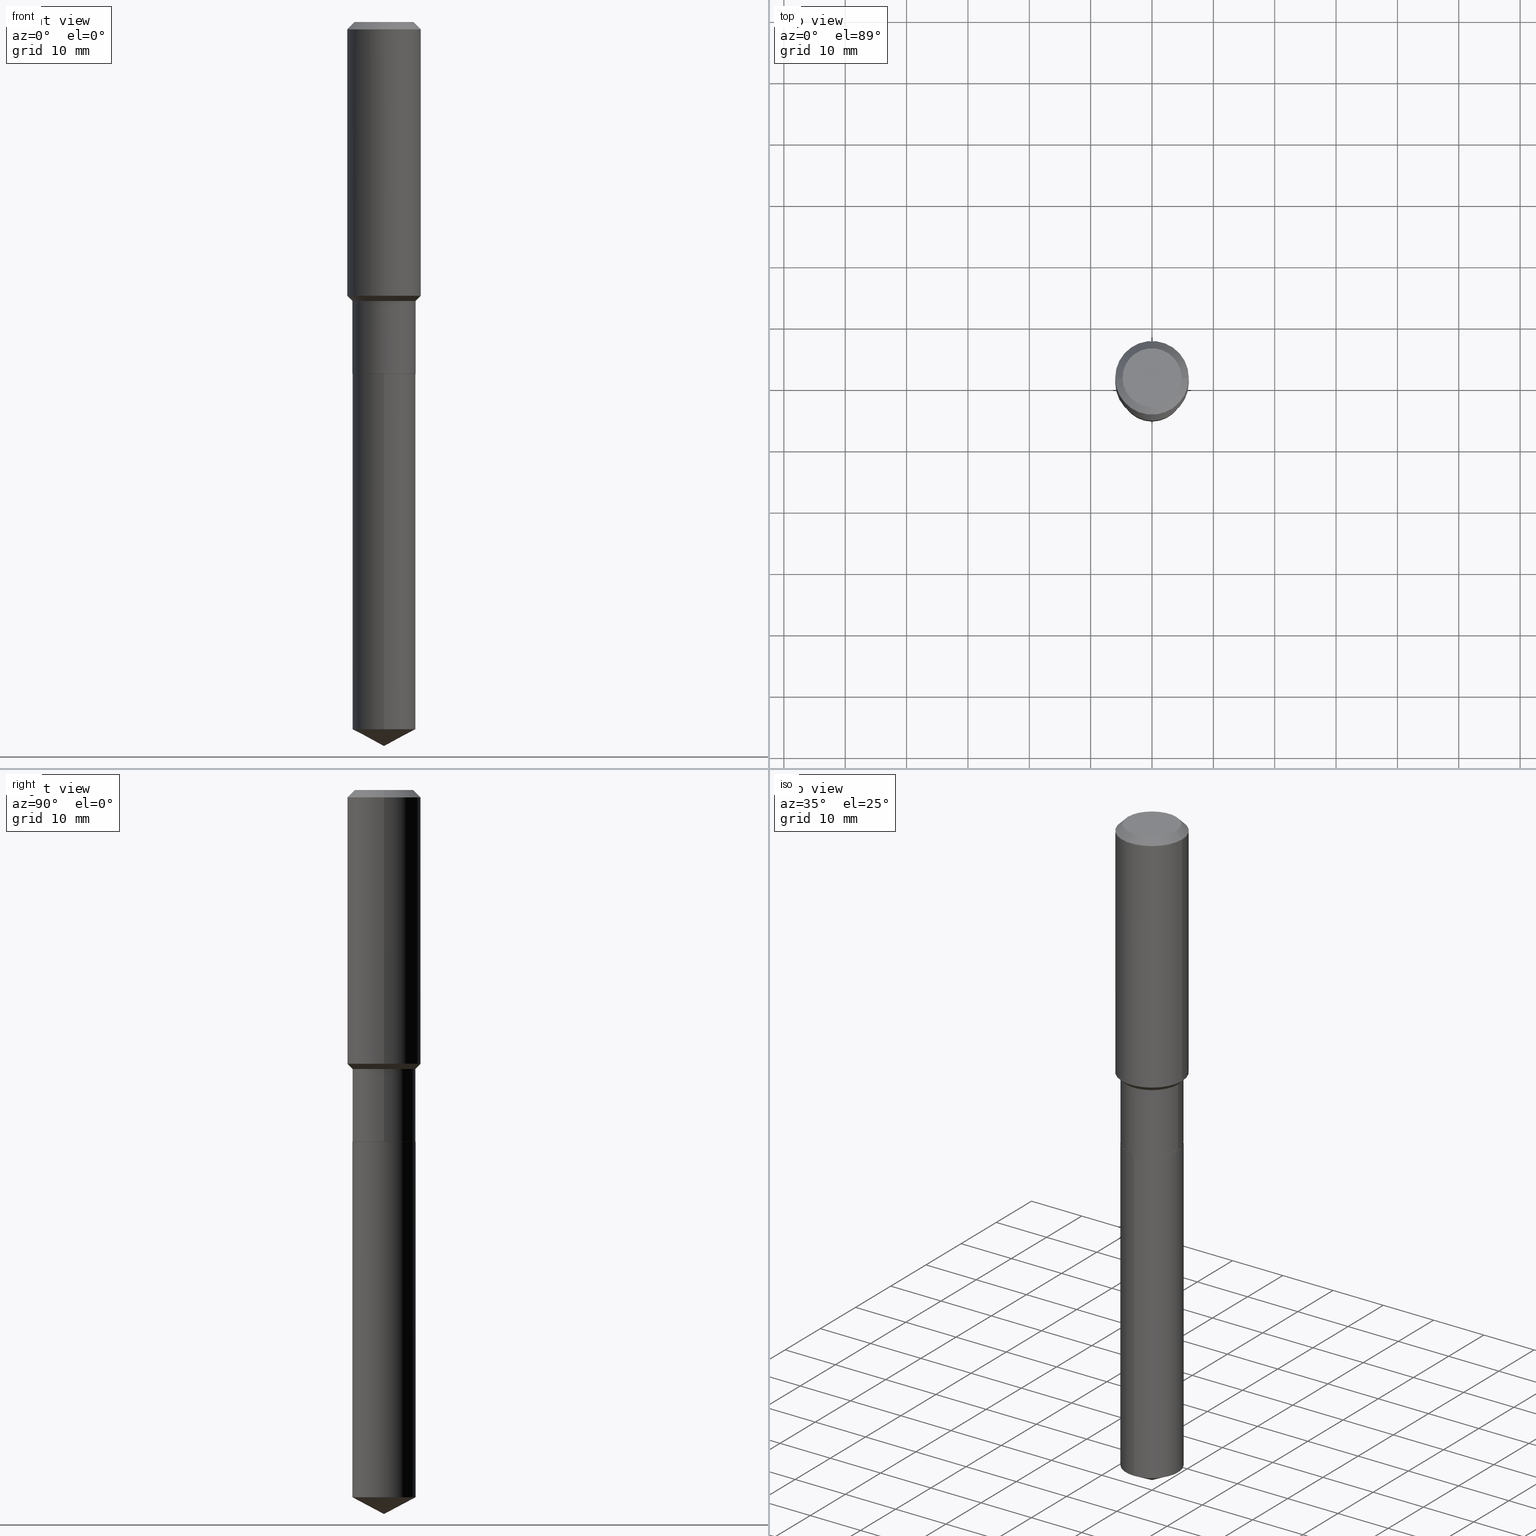
[diagram: canonical four-view strip — front | top / right | iso, engineering-drawing reading convention]
A machine part, canonical four-view strip (front | top / right | iso — engineering-drawing reading convention). The complete STEP part file that produces these views, byte-faithful:
ISO-10303-21;
HEADER;
FILE_DESCRIPTION (( 'STEP AP203' ),
    '1' );
FILE_NAME ('55183.STEP',
    '2024-04-24T16:58:36',
    ( '' ),
    ( '' ),
    'SwSTEP 2.0',
    'SolidWorks 2023',
    '' );
FILE_SCHEMA (( 'CONFIG_CONTROL_DESIGN' ));
ENDSEC;

DATA;
#1 = CARTESIAN_POINT ( 'NONE',  ( 1.155239464041864981E-30, -1.649375784469511119E-16, -0.04724000000000026789 ) ) ;
#2 = ADVANCED_FACE ( 'NONE', ( #255 ), #266, .T. ) ;
#3 = CARTESIAN_POINT ( 'NONE',  ( -9.427742298522546243E-47, 1.346031739168365344E-32, 3.855188123715862256E-18 ) ) ;
#4 = VECTOR ( 'NONE', #411, 39.37007874015748143 ) ;
#5 = ORIENTED_EDGE ( 'NONE', *, *, #20, .T. ) ;
#6 = CLOSED_SHELL ( 'NONE', ( #269, #330, #149, #410, #404, #446, #123, #457, #181, #454, #474, #2 ) ) ;
#7 = CARTESIAN_POINT ( 'NONE',  ( 0.2026000000000000023, -9.295719916535981924E-15, -2.257199999999999207 ) ) ;
#8 = ORIENTED_EDGE ( 'NONE', *, *, #220, .T. ) ;
#9 = EDGE_CURVE ( 'NONE', #385, #51, #188, .T. ) ;
#10 =( CONVERSION_BASED_UNIT ( 'INCH', #364 ) LENGTH_UNIT ( ) NAMED_UNIT ( #249 ) );
#11 = PERSON ( 'UNSPECIFIED', 'UNSPECIFIED', 'UNSPECIFIED', ('UNSPECIFIED'), ('UNSPECIFIED'), ('UNSPECIFIED') ) ;
#12 = VERTEX_POINT ( 'NONE', #103 ) ;
#13 = VECTOR ( 'NONE', #68, 39.37007874015747433 ) ;
#14 = AXIS2_PLACEMENT_3D ( 'NONE', #265, #450, #339 ) ;
#15 = PLANE ( 'NONE',  #110 ) ;
#16 = ORIENTED_EDGE ( 'NONE', *, *, #316, .T. ) ;
#17 = FACE_OUTER_BOUND ( 'NONE', #325, .T. ) ;
#18 = ORIENTED_EDGE ( 'NONE', *, *, #220, .F. ) ;
#19 = CARTESIAN_POINT ( 'NONE',  ( -0.2026000000000000023, -6.438762868212672328E-15, -2.257199999999999207 ) ) ;
#20 = EDGE_CURVE ( 'NONE', #460, #213, #365, .T. ) ;
#21 = COORDINATED_UNIVERSAL_TIME_OFFSET ( 5, 0, .BEHIND. ) ;
#22 =( LENGTH_UNIT ( ) NAMED_UNIT ( * ) SI_UNIT ( $, .METRE. ) );
#23 = ORIENTED_EDGE ( 'NONE', *, *, #116, .F. ) ;
#24 = VECTOR ( 'NONE', #61, 39.37007874015748143 ) ;
#25 = APPROVAL_ROLE ( '' ) ;
#26 = ORIENTED_EDGE ( 'NONE', *, *, #322, .F. ) ;
#27 = PERSON_AND_ORGANIZATION_ROLE ( 'creator' ) ;
#28 = ORIENTED_EDGE ( 'NONE', *, *, #358, .T. ) ;
#29 = PERSON_AND_ORGANIZATION_ROLE ( 'creator' ) ;
#30 = ORIENTED_EDGE ( 'NONE', *, *, #116, .T. ) ;
#31 = PERSON_AND_ORGANIZATION_ROLE ( 'design_supplier' ) ;
#32 = CIRCLE ( 'NONE', #99, 0.2361999999999999933 ) ;
#33 = DIRECTION ( 'NONE',  ( -6.982962677686266711E-15, -1.000000000000000000, 4.035225987687242674E-15 ) ) ;
#34 = CIRCLE ( 'NONE', #229, 0.2362000000000002431 ) ;
#35 = DIRECTION ( 'NONE',  ( 2.445468806185136597E-29, -3.491481338843145583E-15, -1.000000000000000000 ) ) ;
#36 = ADVANCED_FACE ( 'NONE', ( #152 ), #64, .T. ) ;
#37 = LINE ( 'NONE', #159, #478 ) ;
#38 = CARTESIAN_POINT ( 'NONE',  ( 0.2030999999999999750, -7.668340464501195554E-15, -1.790100000000000025 ) ) ;
#39 = AXIS2_PLACEMENT_3D ( 'NONE', #452, #120, #270 ) ;
#40 = VECTOR ( 'NONE', #309, 39.37007874015748143 ) ;
#41 = CC_DESIGN_PERSON_AND_ORGANIZATION_ASSIGNMENT ( #217, #27, ( #405 ) ) ;
#42 = CARTESIAN_POINT ( 'NONE',  ( 1.443112296328874924E-15, 0.2030999999999921479, -2.257200000000000539 ) ) ;
#43 = FACE_OUTER_BOUND ( 'NONE', #480, .T. ) ;
#44 = APPLICATION_CONTEXT ( 'configuration controlled 3d designs of mechanical parts and assemblies' ) ;
#45 = CARTESIAN_POINT ( 'NONE',  ( 4.377633709952013450E-29, -6.250100744663115568E-15, -1.790100000000000025 ) ) ;
#46 = AXIS2_PLACEMENT_3D ( 'NONE', #245, #354, #468 ) ;
#47 = ORIENTED_EDGE ( 'NONE', *, *, #59, .T. ) ;
#48 = CIRCLE ( 'NONE', #318, 0.1889600000000000168 ) ;
#49 = CARTESIAN_POINT ( 'NONE',  ( 4.377633709952013450E-29, -6.250100744663115568E-15, -1.790100000000000025 ) ) ;
#50 = PLANE ( 'NONE',  #473 ) ;
#51 = VERTEX_POINT ( 'NONE', #114 ) ;
#52 = APPROVAL_STATUS ( 'not_yet_approved' ) ;
#53 = ORIENTED_EDGE ( 'NONE', *, *, #9, .F. ) ;
#54 =( NAMED_UNIT ( * ) PLANE_ANGLE_UNIT ( ) SI_UNIT ( $, .RADIAN. ) );
#55 = EDGE_LOOP ( 'NONE', ( #98, #16, #244, #295 ) ) ;
#56 = AXIS2_PLACEMENT_3D ( 'NONE', #273, #304, #307 ) ;
#57 = AXIS2_PLACEMENT_3D ( 'NONE', #212, #169, #286 ) ;
#58 = DIRECTION ( 'NONE',  ( -2.438088387897960049E-29, 3.491481338843145188E-15, 1.000000000000000000 ) ) ;
#59 = EDGE_CURVE ( 'NONE', #12, #89, #290, .T. ) ;
#60 = VERTEX_POINT ( 'NONE', #455 ) ;
#61 = DIRECTION ( 'NONE',  ( -2.445468806185136877E-29, 3.491481338843145188E-15, 1.000000000000000000 ) ) ;
#62 = PERSON_AND_ORGANIZATION ( #11, #347 ) ;
#63 = CARTESIAN_POINT ( 'NONE',  ( 7.645244535497741815E-29, -4.837374791906948055E-15, -2.257199999999999651 ) ) ;
#64 = CYLINDRICAL_SURFACE ( 'NONE', #112, 0.2031000000000000028 ) ;
#65 = CARTESIAN_POINT ( 'NONE',  ( 0.000000000000000000, 0.000000000000000000, 0.000000000000000000 ) ) ;
#66 = APPLICATION_PROTOCOL_DEFINITION ( 'international standard', 'config_control_design', 1994, #71 ) ;
#67 = DIRECTION ( 'NONE',  ( -0.7071067811868130271, 7.493145998871311837E-15, 0.7071067811862817853 ) ) ;
#68 = DIRECTION ( 'NONE',  ( -6.165590087286837607E-15, -0.8829475928589267664, 0.4694715627858912499 ) ) ;
#69 = CIRCLE ( 'NONE', #451, 0.1889600000000000168 ) ;
#70 = VERTEX_POINT ( 'NONE', #85 ) ;
#71 = APPLICATION_CONTEXT ( 'configuration controlled 3d designs of mechanical parts and assemblies' ) ;
#72 = CC_DESIGN_PERSON_AND_ORGANIZATION_ASSIGNMENT ( #250, #141, ( #341 ) ) ;
#73 = ORIENTED_EDGE ( 'NONE', *, *, #79, .F. ) ;
#74 = DIRECTION ( 'NONE',  ( 1.000000000000000000, -6.982962677686266711E-15, 4.876176775795936353E-29 ) ) ;
#75 = CIRCLE ( 'NONE', #346, 0.2031000000000000028 ) ;
#76 = CC_DESIGN_APPROVAL ( #274, ( #285 ) ) ;
#77 = CARTESIAN_POINT ( 'NONE',  ( -8.491139215901974588E-28, 1.212460044372425280E-13, 34.72407874015748064 ) ) ;
#78 = CARTESIAN_POINT ( 'NONE',  ( 5.519912189321089648E-29, -7.880971678036746522E-15, -2.257199999999999651 ) ) ;
#79 = EDGE_CURVE ( 'NONE', #240, #51, #484, .T. ) ;
#80 = CONICAL_SURFACE ( 'NONE', #348, 0.2361999999999999933, 0.7853981633974453924 ) ;
#81 = APPROVAL_DATE_TIME ( #338, #274 ) ;
#82 = FACE_OUTER_BOUND ( 'NONE', #263, .T. ) ;
#83 = FACE_OUTER_BOUND ( 'NONE', #288, .T. ) ;
#84 = CC_DESIGN_PERSON_AND_ORGANIZATION_ASSIGNMENT ( #407, #31, ( #405 ) ) ;
#85 = CARTESIAN_POINT ( 'NONE',  ( 0.2361999999999999933, -1.814313362916447440E-15, -0.04724000000000026789 ) ) ;
#86 = FACE_OUTER_BOUND ( 'NONE', #97, .T. ) ;
#87 = DIRECTION ( 'NONE',  ( -2.445468806185136597E-29, 3.491481338843145583E-15, 1.000000000000000000 ) ) ;
#88 = DIRECTION ( 'NONE',  ( -2.445326593051058673E-29, 3.491684996145414062E-15, 1.000000000000000000 ) ) ;
#89 = VERTEX_POINT ( 'NONE', #306 ) ;
#90 = DIRECTION ( 'NONE',  ( 1.000000000000000000, -6.982962677686261189E-15, 0.000000000000000000 ) ) ;
#91 = LOCAL_TIME ( 12, 58, 36.00000000000000000, #409 ) ;
#92 = ORIENTED_EDGE ( 'NONE', *, *, #358, .F. ) ;
#93 = EDGE_CURVE ( 'NONE', #300, #385, #313, .T. ) ;
#94 = UNCERTAINTY_MEASURE_WITH_UNIT (LENGTH_MEASURE( 1.000000000000000082E-05 ), #10, 'distance_accuracy_value', 'NONE');
#95 = ORIENTED_EDGE ( 'NONE', *, *, #211, .F. ) ;
#96 = CARTESIAN_POINT ( 'NONE',  ( 1.136098735131521847E-28, -1.622236849209159255E-14, -4.645999999999999908 ) ) ;
#97 = EDGE_LOOP ( 'NONE', ( #292, #246, #23, #95 ) ) ;
#98 = ORIENTED_EDGE ( 'NONE', *, *, #351, .T. ) ;
#99 = AXIS2_PLACEMENT_3D ( 'NONE', #122, #121, #449 ) ;
#100 = VECTOR ( 'NONE', #393, 39.37007874015748143 ) ;
#101 = AXIS2_PLACEMENT_3D ( 'NONE', #340, #377, #336 ) ;
#102 = CYLINDRICAL_SURFACE ( 'NONE', #57, 0.2362000000000001321 ) ;
#103 = CARTESIAN_POINT ( 'NONE',  ( -0.2362000000000002431, -4.456230770482048538E-15, -1.756999999999999895 ) ) ;
#104 = CARTESIAN_POINT ( 'NONE',  ( 1.136098735131522071E-28, -1.622236849209159255E-14, -4.645999999999999908 ) ) ;
#105 = APPROVAL_DATE_TIME ( #475, #443 ) ;
#106 = ORIENTED_EDGE ( 'NONE', *, *, #237, .T. ) ;
#107 = APPROVAL_DATE_TIME ( #182, #225 ) ;
#108 = ORIENTED_EDGE ( 'NONE', *, *, #247, .F. ) ;
#109 = CC_DESIGN_PERSON_AND_ORGANIZATION_ASSIGNMENT ( #62, #29, ( #285 ) ) ;
#110 = AXIS2_PLACEMENT_3D ( 'NONE', #63, #58, #477 ) ;
#111 = COORDINATED_UNIVERSAL_TIME_OFFSET ( 5, 0, .BEHIND. ) ;
#112 = AXIS2_PLACEMENT_3D ( 'NONE', #296, #333, #483 ) ;
#113 = CARTESIAN_POINT ( 'NONE',  ( 4.296688692467284902E-29, -6.134532712347405721E-15, -1.756999999999999895 ) ) ;
#114 = CARTESIAN_POINT ( 'NONE',  ( -0.2031000000000000028, -5.621551044686456796E-15, -2.256699999999999928 ) ) ;
#115 = CALENDAR_DATE ( 2024, 24, 4 ) ;
#116 = EDGE_CURVE ( 'NONE', #70, #248, #32, .T. ) ;
#117 = CARTESIAN_POINT ( 'NONE',  ( 1.443112296328874135E-15, 0.2030999999999841821, -4.538009814429555533 ) ) ;
#118 = APPROVAL_PERSON_ORGANIZATION ( #390, #274, #183 ) ;
#119 = DIRECTION ( 'NONE',  ( -2.445468806185136597E-29, 3.491481338843145583E-15, 1.000000000000000000 ) ) ;
#120 = DIRECTION ( 'NONE',  ( -2.445468806185136597E-29, 3.491481338843145583E-15, 1.000000000000000000 ) ) ;
#121 = DIRECTION ( 'NONE',  ( -2.445468806185136597E-29, 3.491481338843145583E-15, 1.000000000000000000 ) ) ;
#122 = CARTESIAN_POINT ( 'NONE',  ( 1.155239464041864981E-30, -1.649375784469511119E-16, -0.04724000000000026789 ) ) ;
#123 = ADVANCED_FACE ( 'NONE', ( #236 ), #465, .T. ) ;
#124 = VECTOR ( 'NONE', #367, 39.37007874015748854 ) ;
#125 = CARTESIAN_POINT ( 'NONE',  ( 1.109723708223753094E-28, -1.584484108614163035E-14, -4.538009814429554645 ) ) ;
#126 = AXIS2_PLACEMENT_3D ( 'NONE', #148, #258, #232 ) ;
#127 = DIRECTION ( 'NONE',  ( -2.445468806185136597E-29, 3.491481338843145583E-15, 1.000000000000000000 ) ) ;
#128 = VERTEX_POINT ( 'NONE', #42 ) ;
#129 = EDGE_CURVE ( 'NONE', #429, #89, #343, .T. ) ;
#130 = CARTESIAN_POINT ( 'NONE',  ( 0.1889600000000000168, -1.540873453589747738E-15, 3.855188123725863225E-18 ) ) ;
#131 = DIRECTION ( 'NONE',  ( -2.445326593051058673E-29, 3.491684996145414062E-15, 1.000000000000000000 ) ) ;
#132 = EDGE_LOOP ( 'NONE', ( #53, #327, #425, #216 ) ) ;
#133 = APPLICATION_PROTOCOL_DEFINITION ( 'international standard', 'config_control_design', 1994, #44 ) ;
#134 = CONICAL_SURFACE ( 'NONE', #275, 0.2030999999999999750, 0.7853981633974482790 ) ;
#135 = ORIENTED_EDGE ( 'NONE', *, *, #303, .F. ) ;
#136 = FACE_OUTER_BOUND ( 'NONE', #469, .T. ) ;
#137 = EDGE_CURVE ( 'NONE', #51, #60, #37, .T. ) ;
#138 = CARTESIAN_POINT ( 'NONE',  ( -9.427742298522546243E-47, 1.346031739168365344E-32, 3.855188123715862256E-18 ) ) ;
#139 = ORIENTED_EDGE ( 'NONE', *, *, #303, .T. ) ;
#140 = FACE_OUTER_BOUND ( 'NONE', #172, .T. ) ;
#141 = PERSON_AND_ORGANIZATION_ROLE ( 'design_owner' ) ;
#142 = ORIENTED_EDGE ( 'NONE', *, *, #189, .T. ) ;
#143 = AXIS2_PLACEMENT_3D ( 'NONE', #243, #131, #387 ) ;
#144 = LOCAL_TIME ( 12, 58, 36.00000000000000000, #370 ) ;
#145 = AXIS2_PLACEMENT_3D ( 'NONE', #486, #195, #490 ) ;
#146 = SHAPE_DEFINITION_REPRESENTATION ( #272, #392 ) ;
#147 = ORIENTED_EDGE ( 'NONE', *, *, #200, .T. ) ;
#148 = CARTESIAN_POINT ( 'NONE',  ( 5.518689454917996847E-29, -7.879225937367325807E-15, -2.256699999999999928 ) ) ;
#149 = ADVANCED_FACE ( 'NONE', ( #86 ), #235, .T. ) ;
#150 = EDGE_LOOP ( 'NONE', ( #432, #317, #253, #204 ) ) ;
#151 = PERSON_AND_ORGANIZATION_ROLE ( 'classification_officer' ) ;
#152 = FACE_OUTER_BOUND ( 'NONE', #150, .T. ) ;
#153 = VECTOR ( 'NONE', #423, 39.37007874015748854 ) ;
#154 = ORIENTED_EDGE ( 'NONE', *, *, #161, .T. ) ;
#155 = EDGE_CURVE ( 'NONE', #371, #472, #417, .T. ) ;
#156 = DIRECTION ( 'NONE',  ( 1.000000000000000000, -6.982962677686261189E-15, 0.000000000000000000 ) ) ;
#157 = DIRECTION ( 'NONE',  ( 0.7071067811865474617, -2.468850131082256666E-15, 0.7071067811865474617 ) ) ;
#158 = APPROVAL_PERSON_ORGANIZATION ( #363, #443, #326 ) ;
#159 = CARTESIAN_POINT ( 'NONE',  ( -0.2031000000000000028, 1.443112296328763497E-15, -9.990357168307714203E-30 ) ) ;
#160 = LINE ( 'NONE', #302, #40 ) ;
#161 = EDGE_CURVE ( 'NONE', #408, #70, #231, .T. ) ;
#162 = DIRECTION ( 'NONE',  ( -2.445468806185136597E-29, 3.491481338843145583E-15, 1.000000000000000000 ) ) ;
#163 = CARTESIAN_POINT ( 'NONE',  ( 5.519912189321088527E-29, -7.880971678036746522E-15, -2.257199999999999207 ) ) ;
#164 = ORIENTED_EDGE ( 'NONE', *, *, #200, .F. ) ;
#165 = VECTOR ( 'NONE', #198, 39.37007874015748143 ) ;
#166 = ADVANCED_FACE ( 'NONE', ( #233 ), #395, .T. ) ;
#167 = CARTESIAN_POINT ( 'NONE',  ( 4.296688692467284902E-29, -6.134532712347405721E-15, -1.756999999999999895 ) ) ;
#168 = ORIENTED_EDGE ( 'NONE', *, *, #391, .F. ) ;
#169 = DIRECTION ( 'NONE',  ( -2.445468806185136597E-29, 3.491481338843145583E-15, 1.000000000000000000 ) ) ;
#170 = CC_DESIGN_DATE_AND_TIME_ASSIGNMENT ( #372, #332, ( #285 ) ) ;
#171 = CC_DESIGN_APPROVAL ( #225, ( #405 ) ) ;
#172 = EDGE_LOOP ( 'NONE', ( #8, #106 ) ) ;
#173 = AXIS2_PLACEMENT_3D ( 'NONE', #487, #162, #378 ) ;
#174 = ORIENTED_EDGE ( 'NONE', *, *, #93, .T. ) ;
#175 = DIRECTION ( 'NONE',  ( -1.000000000000000000, 6.982962677686266711E-15, 0.000000000000000000 ) ) ;
#176 = DIRECTION ( 'NONE',  ( -1.000000000000000000, 6.982962677686265922E-15, -4.876176775795935793E-29 ) ) ;
#177 = ORIENTED_EDGE ( 'NONE', *, *, #137, .T. ) ;
#178 = APPROVAL_STATUS ( 'not_yet_approved' ) ;
#179 = CARTESIAN_POINT ( 'NONE',  ( 0.2030999999999999750, -7.668340464501195554E-15, -1.790100000000000025 ) ) ;
#180 = DIRECTION ( 'NONE',  ( 1.000000000000000000, -6.982962677686261189E-15, 0.000000000000000000 ) ) ;
#181 = ADVANCED_FACE ( 'NONE', ( #271 ), #80, .T. ) ;
#182 = DATE_AND_TIME ( #187, #144 ) ;
#183 = APPROVAL_ROLE ( '' ) ;
#184 = ORIENTED_EDGE ( 'NONE', *, *, #211, .T. ) ;
#185 = DATE_TIME_ROLE ( 'classification_date' ) ;
#186 = ORIENTED_EDGE ( 'NONE', *, *, #488, .F. ) ;
#187 = CALENDAR_DATE ( 2024, 24, 4 ) ;
#188 = LINE ( 'NONE', #441, #311 ) ;
#189 = EDGE_CURVE ( 'NONE', #60, #429, #228, .T. ) ;
#190 = AXIS2_PLACEMENT_3D ( 'NONE', #419, #119, #74 ) ;
#191 = CONICAL_SURFACE ( 'NONE', #312, 74.04434902938369589, 1.082104136236487379 ) ;
#192 = PERSON_AND_ORGANIZATION ( #11, #347 ) ;
#193 = CYLINDRICAL_SURFACE ( 'NONE', #101, 0.2031000000000000028 ) ;
#194 = CARTESIAN_POINT ( 'NONE',  ( 0.2361999999999999933, -1.785387205520586782E-15, -0.04724000000000026789 ) ) ;
#195 = DIRECTION ( 'NONE',  ( -2.445468806185136597E-29, 3.491481338843145583E-15, 1.000000000000000000 ) ) ;
#196 = EDGE_CURVE ( 'NONE', #248, #70, #433, .T. ) ;
#197 = DIRECTION ( 'NONE',  ( -1.000000000000000000, 6.982962677686266711E-15, 0.000000000000000000 ) ) ;
#198 = DIRECTION ( 'NONE',  ( -2.445326593051058953E-29, 3.491684996145414062E-15, 1.000000000000000000 ) ) ;
#199 = CARTESIAN_POINT ( 'NONE',  ( 7.640012304217149312E-29, -4.844867644900865236E-15, -2.257199999999999651 ) ) ;
#200 = EDGE_CURVE ( 'NONE', #355, #248, #160, .T. ) ;
#201 = AXIS2_PLACEMENT_3D ( 'NONE', #163, #87, #90 ) ;
#202 = DIRECTION ( 'NONE',  ( -0.7071067811865474617, 7.493145998870352582E-15, 0.7071067811865474617 ) ) ;
#203 = SECURITY_CLASSIFICATION ( '', '', #299 ) ;
#204 = ORIENTED_EDGE ( 'NONE', *, *, #237, .F. ) ;
#205 = CLOSED_SHELL ( 'NONE', ( #234, #166, #374, #36, #308 ) ) ;
#206 = DIRECTION ( 'NONE',  ( -2.445468806185136597E-29, 3.491481338843145583E-15, 1.000000000000000000 ) ) ;
#207 = LINE ( 'NONE', #349, #320 ) ;
#208 = EDGE_LOOP ( 'NONE', ( #284, #142, #279, #329 ) ) ;
#209 = DIRECTION ( 'NONE',  ( 1.000000000000000000, -6.982962677686266711E-15, 4.876185090822587894E-29 ) ) ;
#210 = ORIENTED_EDGE ( 'NONE', *, *, #20, .F. ) ;
#211 = EDGE_CURVE ( 'NONE', #89, #70, #416, .T. ) ;
#212 = CARTESIAN_POINT ( 'NONE',  ( 0.000000000000000000, 0.000000000000000000, 0.000000000000000000 ) ) ;
#213 = VERTEX_POINT ( 'NONE', #117 ) ;
#214 = VECTOR ( 'NONE', #456, 39.37007874015748143 ) ;
#215 = CARTESIAN_POINT ( 'NONE',  ( 1.443112296328818323E-15, 0.2030999999999921202, -2.257200000000000539 ) ) ;
#216 = ORIENTED_EDGE ( 'NONE', *, *, #368, .F. ) ;
#217 = PERSON_AND_ORGANIZATION ( #11, #347 ) ;
#218 = DIRECTION ( 'NONE',  ( 1.000000000000000000, -6.982962677686265922E-15, 0.000000000000000000 ) ) ;
#219 = DIRECTION ( 'NONE',  ( -2.445468806185136597E-29, 3.491481338843145583E-15, 1.000000000000000000 ) ) ;
#220 = EDGE_CURVE ( 'NONE', #472, #128, #75, .T. ) ;
#221 = APPROVAL_STATUS ( 'not_yet_approved' ) ;
#222 = MECHANICAL_CONTEXT ( 'NONE', #71, 'mechanical' ) ;
#223 = ORIENTED_EDGE ( 'NONE', *, *, #467, .T. ) ;
#224 = ORIENTED_EDGE ( 'NONE', *, *, #391, .T. ) ;
#225 = APPROVAL ( #221, 'UNSPECIFIED' ) ;
#226 = ORIENTED_EDGE ( 'NONE', *, *, #337, .T. ) ;
#227 = DIRECTION ( 'NONE',  ( -2.445326593051058673E-29, 3.491684996145414062E-15, 1.000000000000000000 ) ) ;
#228 = CIRCLE ( 'NONE', #458, 0.2030999999999999750 ) ;
#229 = AXIS2_PLACEMENT_3D ( 'NONE', #167, #461, #470 ) ;
#230 = DIRECTION ( 'NONE',  ( -2.445326593051058673E-29, 3.491684996145414062E-15, 1.000000000000000000 ) ) ;
#231 = LINE ( 'NONE', #194, #214 ) ;
#232 = DIRECTION ( 'NONE',  ( 1.000000000000000000, -6.982962677686269866E-15, 0.000000000000000000 ) ) ;
#233 = FACE_OUTER_BOUND ( 'NONE', #294, .T. ) ;
#234 = ADVANCED_FACE ( 'NONE', ( #83 ), #193, .T. ) ;
#235 = CYLINDRICAL_SURFACE ( 'NONE', #190, 0.2362000000000001321 ) ;
#236 = FACE_OUTER_BOUND ( 'NONE', #208, .T. ) ;
#237 = EDGE_CURVE ( 'NONE', #128, #472, #298, .T. ) ;
#238 = DIRECTION ( 'NONE',  ( 2.445326593051058393E-29, -3.491684996145414062E-15, -1.000000000000000000 ) ) ;
#239 = CARTESIAN_POINT ( 'NONE',  ( -0.1889600000000000168, 1.401969416799070942E-15, 3.855188123706346622E-18 ) ) ;
#240 = VERTEX_POINT ( 'NONE', #315 ) ;
#241 = CONICAL_SURFACE ( 'NONE', #463, 0.2361999999999999933, 0.7853981633974453924 ) ;
#242 = FACE_OUTER_BOUND ( 'NONE', #55, .T. ) ;
#243 = CARTESIAN_POINT ( 'NONE',  ( 1.109723708223753094E-28, -1.584484108614163035E-14, -4.538009814429554645 ) ) ;
#244 = ORIENTED_EDGE ( 'NONE', *, *, #261, .F. ) ;
#245 = CARTESIAN_POINT ( 'NONE',  ( 0.000000000000000000, 0.000000000000000000, 0.000000000000000000 ) ) ;
#246 = ORIENTED_EDGE ( 'NONE', *, *, #488, .T. ) ;
#247 = EDGE_CURVE ( 'NONE', #300, #240, #426, .T. ) ;
#248 = VERTEX_POINT ( 'NONE', #323 ) ;
#249 = DIMENSIONAL_EXPONENTS ( 1.000000000000000000, 0.000000000000000000, 0.000000000000000000, 0.000000000000000000, 0.000000000000000000, 0.000000000000000000, 0.000000000000000000 ) ;
#250 = PERSON_AND_ORGANIZATION ( #11, #347 ) ;
#251 = AXIS2_PLACEMENT_3D ( 'NONE', #453, #382, #156 ) ;
#252 = CIRCLE ( 'NONE', #297, 0.2030999999999999750 ) ;
#253 = ORIENTED_EDGE ( 'NONE', *, *, #155, .T. ) ;
#254 = FACE_OUTER_BOUND ( 'NONE', #442, .T. ) ;
#255 = FACE_OUTER_BOUND ( 'NONE', #132, .T. ) ;
#256 = FACE_OUTER_BOUND ( 'NONE', #481, .T. ) ;
#257 = ORIENTED_EDGE ( 'NONE', *, *, #368, .T. ) ;
#258 = DIRECTION ( 'NONE',  ( -2.445468806185136597E-29, 3.491481338843145583E-15, 1.000000000000000000 ) ) ;
#259 = ORIENTED_EDGE ( 'NONE', *, *, #9, .T. ) ;
#260 = CIRCLE ( 'NONE', #39, 0.2026000000000000023 ) ;
#261 = EDGE_CURVE ( 'NONE', #89, #12, #34, .T. ) ;
#262 = PERSON_AND_ORGANIZATION ( #11, #347 ) ;
#263 = EDGE_LOOP ( 'NONE', ( #210, #224, #26 ) ) ;
#264 = CARTESIAN_POINT ( 'NONE',  ( 0.2362000000000001321, -1.649375784469497117E-15, 1.151752954443000789E-29 ) ) ;
#265 = CARTESIAN_POINT ( 'NONE',  ( -8.491139215901974588E-28, 1.212460044372425280E-13, 34.72407874015748064 ) ) ;
#266 = CONICAL_SURFACE ( 'NONE', #276, 0.2026000000000000023, 0.7853981633978239785 ) ;
#267 = AXIS2_PLACEMENT_3D ( 'NONE', #65, #219, #422 ) ;
#268 = CARTESIAN_POINT ( 'NONE',  ( 4.377633709952013450E-29, -6.250100744663115568E-15, -1.790100000000000025 ) ) ;
#269 = ADVANCED_FACE ( 'NONE', ( #43 ), #413, .T. ) ;
#270 = DIRECTION ( 'NONE',  ( 1.000000000000000000, -6.982962677686261189E-15, 0.000000000000000000 ) ) ;
#271 = FACE_OUTER_BOUND ( 'NONE', #353, .T. ) ;
#272 = PRODUCT_DEFINITION_SHAPE ( 'NONE', 'NONE',  #285 ) ;
#273 = CARTESIAN_POINT ( 'NONE',  ( 5.518689454917996847E-29, -7.879225937367325807E-15, -2.256699999999999928 ) ) ;
#274 = APPROVAL ( #52, 'UNSPECIFIED' ) ;
#275 = AXIS2_PLACEMENT_3D ( 'NONE', #49, #206, #352 ) ;
#276 = AXIS2_PLACEMENT_3D ( 'NONE', #402, #369, #180 ) ;
#277 = DIRECTION ( 'NONE',  ( -2.445468806185136597E-29, 3.491481338843145583E-15, 1.000000000000000000 ) ) ;
#278 = DIRECTION ( 'NONE',  ( 2.445468806185136597E-29, -3.491481338843145583E-15, -1.000000000000000000 ) ) ;
#279 = ORIENTED_EDGE ( 'NONE', *, *, #129, .T. ) ;
#280 = COORDINATED_UNIVERSAL_TIME_OFFSET ( 5, 0, .BEHIND. ) ;
#281 = DIRECTION ( 'NONE',  ( -6.982962677686266711E-15, -1.000000000000000000, 4.035225987687242674E-15 ) ) ;
#282 = ORIENTED_EDGE ( 'NONE', *, *, #467, .F. ) ;
#283 = DIRECTION ( 'NONE',  ( -2.445468806185136597E-29, 3.491481338843145583E-15, 1.000000000000000000 ) ) ;
#284 = ORIENTED_EDGE ( 'NONE', *, *, #316, .F. ) ;
#285 = PRODUCT_DEFINITION ( 'UNKNOWN', '', #405, #357 ) ;
#286 = DIRECTION ( 'NONE',  ( 1.000000000000000000, -6.982962677686266711E-15, 4.876176775795936353E-29 ) ) ;
#287 = DIRECTION ( 'NONE',  ( -2.445468806185136597E-29, 3.491481338843145583E-15, 1.000000000000000000 ) ) ;
#288 = EDGE_LOOP ( 'NONE', ( #139, #479, #18, #350 ) ) ;
#289 = DIRECTION ( 'NONE',  ( 6.982962677686265922E-15, 1.000000000000000000, -3.491684996145414062E-15 ) ) ;
#290 = CIRCLE ( 'NONE', #335, 0.2362000000000002431 ) ;
#291 = LOCAL_TIME ( 12, 58, 36.00000000000000000, #280 ) ;
#292 = ORIENTED_EDGE ( 'NONE', *, *, #261, .T. ) ;
#293 = VECTOR ( 'NONE', #157, 39.37007874015748854 ) ;
#294 = EDGE_LOOP ( 'NONE', ( #168, #5, #135 ) ) ;
#295 = ORIENTED_EDGE ( 'NONE', *, *, #129, .F. ) ;
#296 = CARTESIAN_POINT ( 'NONE',  ( 5.519912189321090769E-29, -7.880971678036748100E-15, -2.257200000000000095 ) ) ;
#297 = AXIS2_PLACEMENT_3D ( 'NONE', #45, #127, #424 ) ;
#298 = CIRCLE ( 'NONE', #436, 0.2031000000000000028 ) ;
#299 = SECURITY_CLASSIFICATION_LEVEL ( 'unclassified' ) ;
#300 = VERTEX_POINT ( 'NONE', #314 ) ;
#301 = DATE_AND_TIME ( #328, #476 ) ;
#302 = CARTESIAN_POINT ( 'NONE',  ( -0.2361999999999999933, 1.484438206022545019E-15, -0.04724000000000026789 ) ) ;
#303 = EDGE_CURVE ( 'NONE', #371, #213, #414, .T. ) ;
#304 = DIRECTION ( 'NONE',  ( -2.445468806185136597E-29, 3.491481338843145583E-15, 1.000000000000000000 ) ) ;
#305 = AXIS2_PLACEMENT_3D ( 'NONE', #356, #361, #176 ) ;
#306 = CARTESIAN_POINT ( 'NONE',  ( 0.2362000000000002431, -7.783908496816903035E-15, -1.756999999999999895 ) ) ;
#307 = DIRECTION ( 'NONE',  ( 1.000000000000000000, -6.982962677686269866E-15, 0.000000000000000000 ) ) ;
#308 = ADVANCED_FACE ( 'NONE', ( #140 ), #50, .F. ) ;
#309 = DIRECTION ( 'NONE',  ( -0.7071067811865454633, 2.468850131082235367E-15, -0.7071067811865495711 ) ) ;
#310 = CC_DESIGN_PERSON_AND_ORGANIZATION_ASSIGNMENT ( #192, #151, ( #203 ) ) ;
#311 = VECTOR ( 'NONE', #67, 39.37007874015748854 ) ;
#312 = AXIS2_PLACEMENT_3D ( 'NONE', #77, #230, #403 ) ;
#313 = CIRCLE ( 'NONE', #251, 0.2026000000000000023 ) ;
#314 = CARTESIAN_POINT ( 'NONE',  ( 0.2026000000000000023, -9.295719916535981924E-15, -2.257199999999999207 ) ) ;
#315 = CARTESIAN_POINT ( 'NONE',  ( 0.2031000000000000028, -9.297465657205407371E-15, -2.256699999999999928 ) ) ;
#316 = EDGE_CURVE ( 'NONE', #60, #12, #207, .T. ) ;
#317 = ORIENTED_EDGE ( 'NONE', *, *, #322, .T. ) ;
#318 = AXIS2_PLACEMENT_3D ( 'NONE', #138, #283, #209 ) ;
#319 = DIRECTION ( 'NONE',  ( 1.000000000000000000, -6.982962677686266711E-15, 4.876176775795935793E-29 ) ) ;
#320 = VECTOR ( 'NONE', #202, 39.37007874015748854 ) ;
#321 = ORIENTED_EDGE ( 'NONE', *, *, #137, .F. ) ;
#322 = EDGE_CURVE ( 'NONE', #213, #371, #381, .T. ) ;
#323 = CARTESIAN_POINT ( 'NONE',  ( -0.2361999999999999933, -1.471433203531820740E-15, -0.04724000000000026789 ) ) ;
#324 = FACE_OUTER_BOUND ( 'NONE', #359, .T. ) ;
#325 = EDGE_LOOP ( 'NONE', ( #345, #154, #30, #164 ) ) ;
#326 = APPROVAL_ROLE ( '' ) ;
#327 = ORIENTED_EDGE ( 'NONE', *, *, #418, .T. ) ;
#328 = CALENDAR_DATE ( 2024, 24, 4 ) ;
#329 = ORIENTED_EDGE ( 'NONE', *, *, #59, .F. ) ;
#330 = ADVANCED_FACE ( 'NONE', ( #17 ), #241, .T. ) ;
#331 = ORIENTED_EDGE ( 'NONE', *, *, #93, .F. ) ;
#332 = DATE_TIME_ROLE ( 'creation_date' ) ;
#333 = DIRECTION ( 'NONE',  ( -2.445326593051058673E-29, 3.491684996145414062E-15, 1.000000000000000000 ) ) ;
#334 = AXIS2_PLACEMENT_3D ( 'NONE', #466, #287, #319 ) ;
#335 = AXIS2_PLACEMENT_3D ( 'NONE', #113, #398, #218 ) ;
#336 = DIRECTION ( 'NONE',  ( -6.982962677686266711E-15, -1.000000000000000000, 4.035225987687242674E-15 ) ) ;
#337 = EDGE_CURVE ( 'NONE', #408, #355, #69, .T. ) ;
#338 = DATE_AND_TIME ( #464, #291 ) ;
#339 = DIRECTION ( 'NONE',  ( -6.982962677686265922E-15, -1.000000000000000000, 3.541896320645553375E-15 ) ) ;
#340 = CARTESIAN_POINT ( 'NONE',  ( 5.519912189321090769E-29, -7.880971678036748100E-15, -2.257200000000000095 ) ) ;
#341 = PRODUCT ( '55183', '55183', '', ( #222 ) ) ;
#342 = DIRECTION ( 'NONE',  ( 1.000000000000000000, -6.982962677686265922E-15, 0.000000000000000000 ) ) ;
#343 = LINE ( 'NONE', #38, #293 ) ;
#344 = CARTESIAN_POINT ( 'NONE',  ( 1.155239464041864981E-30, -1.649375784469511119E-16, -0.04724000000000026789 ) ) ;
#345 = ORIENTED_EDGE ( 'NONE', *, *, #337, .F. ) ;
#346 = AXIS2_PLACEMENT_3D ( 'NONE', #78, #227, #33 ) ;
#347 = ORGANIZATION ( 'UNSPECIFIED', 'UNSPECIFIED', '' ) ;
#348 = AXIS2_PLACEMENT_3D ( 'NONE', #1, #35, #197 ) ;
#349 = CARTESIAN_POINT ( 'NONE',  ( -0.2030999999999999750, -4.806988448334352465E-15, -1.790100000000000025 ) ) ;
#350 = ORIENTED_EDGE ( 'NONE', *, *, #155, .F. ) ;
#351 = EDGE_CURVE ( 'NONE', #429, #60, #252, .T. ) ;
#352 = DIRECTION ( 'NONE',  ( 1.000000000000000000, -6.982962677686265922E-15, 0.000000000000000000 ) ) ;
#353 = EDGE_LOOP ( 'NONE', ( #362, #282, #147, #437 ) ) ;
#354 = DIRECTION ( 'NONE',  ( 0.000000000000000000, 0.000000000000000000, 1.000000000000000000 ) ) ;
#355 = VERTEX_POINT ( 'NONE', #239 ) ;
#356 = CARTESIAN_POINT ( 'NONE',  ( -4.713871149261273121E-47, 6.730158695841826722E-33, 1.927594061857931128E-18 ) ) ;
#357 = DESIGN_CONTEXT ( 'detailed design', #44, 'design' ) ;
#358 = EDGE_CURVE ( 'NONE', #240, #429, #384, .T. ) ;
#359 = EDGE_LOOP ( 'NONE', ( #331, #427 ) ) ;
#360 = DIRECTION ( 'NONE',  ( -2.445326593051058673E-29, 3.491684996145414062E-15, 1.000000000000000000 ) ) ;
#361 = DIRECTION ( 'NONE',  ( 2.438088387897960049E-29, -3.491481338843145188E-15, -1.000000000000000000 ) ) ;
#362 = ORIENTED_EDGE ( 'NONE', *, *, #161, .F. ) ;
#363 = PERSON_AND_ORGANIZATION ( #11, #347 ) ;
#364 = LENGTH_MEASURE_WITH_UNIT ( LENGTH_MEASURE( 0.02539999999999999897 ), #22 );
#365 = LINE ( 'NONE', #400, #124 ) ;
#366 = CC_DESIGN_SECURITY_CLASSIFICATION ( #203, ( #405 ) ) ;
#367 = DIRECTION ( 'NONE',  ( 6.273719981627766076E-15, 0.8829475928589298750, 0.4694715627858848661 ) ) ;
#368 = EDGE_CURVE ( 'NONE', #51, #240, #482, .T. ) ;
#369 = DIRECTION ( 'NONE',  ( -2.445468806185136597E-29, 3.491481338843145583E-15, 1.000000000000000000 ) ) ;
#370 = COORDINATED_UNIVERSAL_TIME_OFFSET ( 5, 0, .BEHIND. ) ;
#371 = VERTEX_POINT ( 'NONE', #444 ) ;
#372 = DATE_AND_TIME ( #115, #420 ) ;
#373 = DIRECTION ( 'NONE',  ( -2.445468806185136597E-29, 3.491481338843145583E-15, 1.000000000000000000 ) ) ;
#374 = ADVANCED_FACE ( 'NONE', ( #82 ), #191, .T. ) ;
#375 = MANIFOLD_SOLID_BREP ( 'Body-Move/Copy2[2]', #6 ) ;
#376 = DIRECTION ( 'NONE',  ( -2.445468806185136877E-29, 3.491481338843145188E-15, 1.000000000000000000 ) ) ;
#377 = DIRECTION ( 'NONE',  ( -2.445326593051058673E-29, 3.491684996145414062E-15, 1.000000000000000000 ) ) ;
#378 = DIRECTION ( 'NONE',  ( 1.000000000000000000, -6.982962677686265922E-15, 0.000000000000000000 ) ) ;
#379 = MANIFOLD_SOLID_BREP ( 'Body-Move/Copy2[1]', #205 ) ;
#380 = APPROVAL_PERSON_ORGANIZATION ( #262, #225, #25 ) ;
#381 = CIRCLE ( 'NONE', #421, 0.2031000000000000028 ) ;
#382 = DIRECTION ( 'NONE',  ( -2.445468806185136597E-29, 3.491481338843145583E-15, 1.000000000000000000 ) ) ;
#383 = DIRECTION ( 'NONE',  ( -6.982962677686266711E-15, -1.000000000000000000, 2.690150658458161520E-15 ) ) ;
#384 = LINE ( 'NONE', #415, #24 ) ;
#385 = VERTEX_POINT ( 'NONE', #19 ) ;
#386 = CC_DESIGN_APPROVAL ( #443, ( #203 ) ) ;
#387 = DIRECTION ( 'NONE',  ( -6.982962677686266711E-15, -1.000000000000000000, 2.690150658458161520E-15 ) ) ;
#388 = ORIENTED_EDGE ( 'NONE', *, *, #189, .F. ) ;
#389 = PRODUCT_RELATED_PRODUCT_CATEGORY ( 'detail', '', ( #341 ) ) ;
#390 = PERSON_AND_ORGANIZATION ( #11, #347 ) ;
#391 = EDGE_CURVE ( 'NONE', #460, #371, #438, .T. ) ;
#392 = ADVANCED_BREP_SHAPE_REPRESENTATION ( '55183', ( #379, #375, #46 ), #434 ) ;
#393 = DIRECTION ( 'NONE',  ( -2.445326593051058953E-29, 3.491684996145414062E-15, 1.000000000000000000 ) ) ;
#394 = ORIENTED_EDGE ( 'NONE', *, *, #351, .F. ) ;
#395 = CONICAL_SURFACE ( 'NONE', #14, 74.04434902938369589, 1.082104136236487379 ) ;
#396 = VECTOR ( 'NONE', #399, 39.37007874015748143 ) ;
#397 = PLANE ( 'NONE',  #305 ) ;
#398 = DIRECTION ( 'NONE',  ( -2.445468806185136597E-29, 3.491481338843145583E-15, 1.000000000000000000 ) ) ;
#399 = DIRECTION ( 'NONE',  ( -2.445468806185136877E-29, 3.491481338843145188E-15, 1.000000000000000000 ) ) ;
#400 = CARTESIAN_POINT ( 'NONE',  ( 1.136163498793102096E-28, -1.622144910156623314E-14, -4.645999999999999908 ) ) ;
#401 = CYLINDRICAL_SURFACE ( 'NONE', #267, 0.2031000000000000028 ) ;
#402 = CARTESIAN_POINT ( 'NONE',  ( 5.519912189321088527E-29, -7.880971678036746522E-15, -2.257199999999999207 ) ) ;
#403 = DIRECTION ( 'NONE',  ( -6.982962677686265922E-15, -1.000000000000000000, 3.541896320645553375E-15 ) ) ;
#404 = ADVANCED_FACE ( 'NONE', ( #256 ), #401, .T. ) ;
#405 = PRODUCT_DEFINITION_FORMATION_WITH_SPECIFIED_SOURCE ( 'ANY', '', #341, .NOT_KNOWN. ) ;
#406 = ORIENTED_EDGE ( 'NONE', *, *, #79, .T. ) ;
#407 = PERSON_AND_ORGANIZATION ( #11, #347 ) ;
#408 = VERTEX_POINT ( 'NONE', #130 ) ;
#409 = COORDINATED_UNIVERSAL_TIME_OFFSET ( 5, 0, .BEHIND. ) ;
#410 = ADVANCED_FACE ( 'NONE', ( #242 ), #134, .T. ) ;
#411 = DIRECTION ( 'NONE',  ( -2.445468806185136877E-29, 3.491481338843145188E-15, 1.000000000000000000 ) ) ;
#412 = CARTESIAN_POINT ( 'NONE',  ( -1.418239719838025752E-15, -0.2031000000000079131, -2.257199999999999207 ) ) ;
#413 = CONICAL_SURFACE ( 'NONE', #201, 0.2026000000000000023, 0.7853981633978239785 ) ;
#414 = CIRCLE ( 'NONE', #143, 0.2031000000000000028 ) ;
#415 = CARTESIAN_POINT ( 'NONE',  ( 0.2031000000000000028, -1.418239719838080775E-15, 9.903515031641546145E-30 ) ) ;
#416 = LINE ( 'NONE', #264, #4 ) ;
#417 = LINE ( 'NONE', #412, #165 ) ;
#418 = EDGE_CURVE ( 'NONE', #385, #300, #260, .T. ) ;
#419 = CARTESIAN_POINT ( 'NONE',  ( 0.000000000000000000, 0.000000000000000000, 0.000000000000000000 ) ) ;
#420 = LOCAL_TIME ( 12, 58, 36.00000000000000000, #21 ) ;
#421 = AXIS2_PLACEMENT_3D ( 'NONE', #125, #360, #383 ) ;
#422 = DIRECTION ( 'NONE',  ( 1.000000000000000000, -6.982962677686266711E-15, 4.876176775795935793E-29 ) ) ;
#423 = DIRECTION ( 'NONE',  ( 0.7071067811868130271, -2.468850131085038979E-15, 0.7071067811862817853 ) ) ;
#424 = DIRECTION ( 'NONE',  ( 1.000000000000000000, -6.982962677686265922E-15, 0.000000000000000000 ) ) ;
#425 = ORIENTED_EDGE ( 'NONE', *, *, #247, .T. ) ;
#426 = LINE ( 'NONE', #7, #153 ) ;
#427 = ORIENTED_EDGE ( 'NONE', *, *, #418, .F. ) ;
#428 = LINE ( 'NONE', #471, #396 ) ;
#429 = VERTEX_POINT ( 'NONE', #179 ) ;
#430 = CYLINDRICAL_SURFACE ( 'NONE', #334, 0.2031000000000000028 ) ;
#431 = CARTESIAN_POINT ( 'NONE',  ( -1.418239719838025752E-15, -0.2031000000000079131, -2.257199999999998763 ) ) ;
#432 = ORIENTED_EDGE ( 'NONE', *, *, #440, .F. ) ;
#433 = CIRCLE ( 'NONE', #145, 0.2361999999999999933 ) ;
#434 =( GEOMETRIC_REPRESENTATION_CONTEXT ( 3 ) GLOBAL_UNCERTAINTY_ASSIGNED_CONTEXT ( ( #94 ) ) GLOBAL_UNIT_ASSIGNED_CONTEXT ( ( #10, #54, #462 ) ) REPRESENTATION_CONTEXT ( 'NONE', 'WORKASPACE' ) );
#435 = FACE_OUTER_BOUND ( 'NONE', #445, .T. ) ;
#436 = AXIS2_PLACEMENT_3D ( 'NONE', #489, #88, #281 ) ;
#437 = ORIENTED_EDGE ( 'NONE', *, *, #196, .T. ) ;
#438 = LINE ( 'NONE', #104, #13 ) ;
#439 = LINE ( 'NONE', #215, #100 ) ;
#440 = EDGE_CURVE ( 'NONE', #213, #128, #439, .T. ) ;
#441 = CARTESIAN_POINT ( 'NONE',  ( -0.2026000000000000023, -6.441412095386782740E-15, -2.257199999999999207 ) ) ;
#442 = EDGE_LOOP ( 'NONE', ( #321, #257, #28, #388 ) ) ;
#443 = APPROVAL ( #178, 'UNSPECIFIED' ) ;
#444 = CARTESIAN_POINT ( 'NONE',  ( -1.418239719837969940E-15, -0.2031000000000158512, -4.538009814429553757 ) ) ;
#445 = EDGE_LOOP ( 'NONE', ( #223, #226 ) ) ;
#446 = ADVANCED_FACE ( 'NONE', ( #254 ), #430, .T. ) ;
#447 = CALENDAR_DATE ( 2024, 24, 4 ) ;
#448 = ORIENTED_EDGE ( 'NONE', *, *, #196, .F. ) ;
#449 = DIRECTION ( 'NONE',  ( 1.000000000000000000, -6.982962677686266711E-15, 0.000000000000000000 ) ) ;
#450 = DIRECTION ( 'NONE',  ( -2.445326593051058673E-29, 3.491684996145414062E-15, 1.000000000000000000 ) ) ;
#451 = AXIS2_PLACEMENT_3D ( 'NONE', #3, #277, #459 ) ;
#452 = CARTESIAN_POINT ( 'NONE',  ( 5.519912189321088527E-29, -7.880971678036746522E-15, -2.257199999999999207 ) ) ;
#453 = CARTESIAN_POINT ( 'NONE',  ( 5.519912189321088527E-29, -7.880971678036746522E-15, -2.257199999999999207 ) ) ;
#454 = ADVANCED_FACE ( 'NONE', ( #435 ), #397, .F. ) ;
#455 = CARTESIAN_POINT ( 'NONE',  ( -0.2030999999999999750, -5.621551044686456796E-15, -1.790100000000000025 ) ) ;
#456 = DIRECTION ( 'NONE',  ( 0.7071067811865454633, -7.319954787623248157E-15, -0.7071067811865495711 ) ) ;
#457 = ADVANCED_FACE ( 'NONE', ( #136 ), #102, .T. ) ;
#458 = AXIS2_PLACEMENT_3D ( 'NONE', #268, #373, #342 ) ;
#459 = DIRECTION ( 'NONE',  ( 1.000000000000000000, -6.982962677686266711E-15, 4.876185090822587894E-29 ) ) ;
#460 = VERTEX_POINT ( 'NONE', #96 ) ;
#461 = DIRECTION ( 'NONE',  ( -2.445468806185136597E-29, 3.491481338843145583E-15, 1.000000000000000000 ) ) ;
#462 =( NAMED_UNIT ( * ) SI_UNIT ( $, .STERADIAN. ) SOLID_ANGLE_UNIT ( ) );
#463 = AXIS2_PLACEMENT_3D ( 'NONE', #344, #278, #175 ) ;
#464 = CALENDAR_DATE ( 2024, 24, 4 ) ;
#465 = CONICAL_SURFACE ( 'NONE', #173, 0.2030999999999999750, 0.7853981633974482790 ) ;
#466 = CARTESIAN_POINT ( 'NONE',  ( 0.000000000000000000, 0.000000000000000000, 0.000000000000000000 ) ) ;
#467 = EDGE_CURVE ( 'NONE', #355, #408, #48, .T. ) ;
#468 = DIRECTION ( 'NONE',  ( 1.000000000000000000, 0.000000000000000000, 0.000000000000000000 ) ) ;
#469 = EDGE_LOOP ( 'NONE', ( #186, #47, #184, #448 ) ) ;
#470 = DIRECTION ( 'NONE',  ( 1.000000000000000000, -6.982962677686265922E-15, 0.000000000000000000 ) ) ;
#471 = CARTESIAN_POINT ( 'NONE',  ( -0.2362000000000001321, 1.678301941865357577E-15, -1.161852468318209457E-29 ) ) ;
#472 = VERTEX_POINT ( 'NONE', #431 ) ;
#473 = AXIS2_PLACEMENT_3D ( 'NONE', #199, #238, #289 ) ;
#474 = ADVANCED_FACE ( 'NONE', ( #324 ), #15, .F. ) ;
#475 = DATE_AND_TIME ( #447, #91 ) ;
#476 = LOCAL_TIME ( 12, 58, 36.00000000000000000, #111 ) ;
#477 = DIRECTION ( 'NONE',  ( 1.000000000000000000, -6.982962677686265922E-15, 4.876176775795935793E-29 ) ) ;
#478 = VECTOR ( 'NONE', #376, 39.37007874015748143 ) ;
#479 = ORIENTED_EDGE ( 'NONE', *, *, #440, .T. ) ;
#480 = EDGE_LOOP ( 'NONE', ( #174, #259, #73, #108 ) ) ;
#481 = EDGE_LOOP ( 'NONE', ( #406, #177, #394, #92 ) ) ;
#482 = CIRCLE ( 'NONE', #126, 0.2031000000000000028 ) ;
#483 = DIRECTION ( 'NONE',  ( -6.982962677686266711E-15, -1.000000000000000000, 4.035225987687242674E-15 ) ) ;
#484 = CIRCLE ( 'NONE', #56, 0.2031000000000000028 ) ;
#485 = CC_DESIGN_DATE_AND_TIME_ASSIGNMENT ( #301, #185, ( #203 ) ) ;
#486 = CARTESIAN_POINT ( 'NONE',  ( 1.155239464041864981E-30, -1.649375784469511119E-16, -0.04724000000000026789 ) ) ;
#487 = CARTESIAN_POINT ( 'NONE',  ( 4.377633709952013450E-29, -6.250100744663115568E-15, -1.790100000000000025 ) ) ;
#488 = EDGE_CURVE ( 'NONE', #12, #248, #428, .T. ) ;
#489 = CARTESIAN_POINT ( 'NONE',  ( 5.519912189321089648E-29, -7.880971678036746522E-15, -2.257199999999999651 ) ) ;
#490 = DIRECTION ( 'NONE',  ( 1.000000000000000000, -6.982962677686266711E-15, 0.000000000000000000 ) ) ;
ENDSEC;
END-ISO-10303-21;
